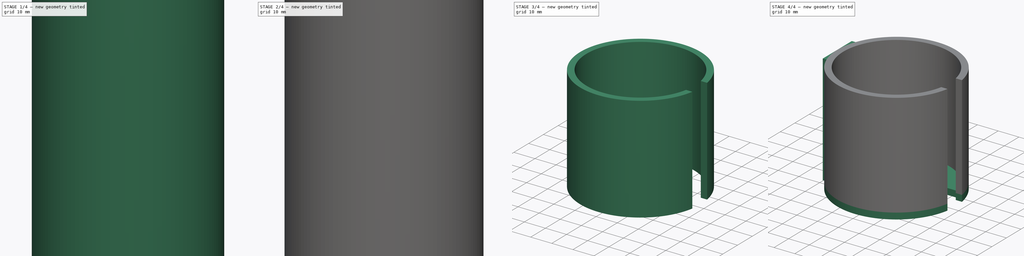
[diagram: build sequence overview — one tinted view per stage of 4, left to right]
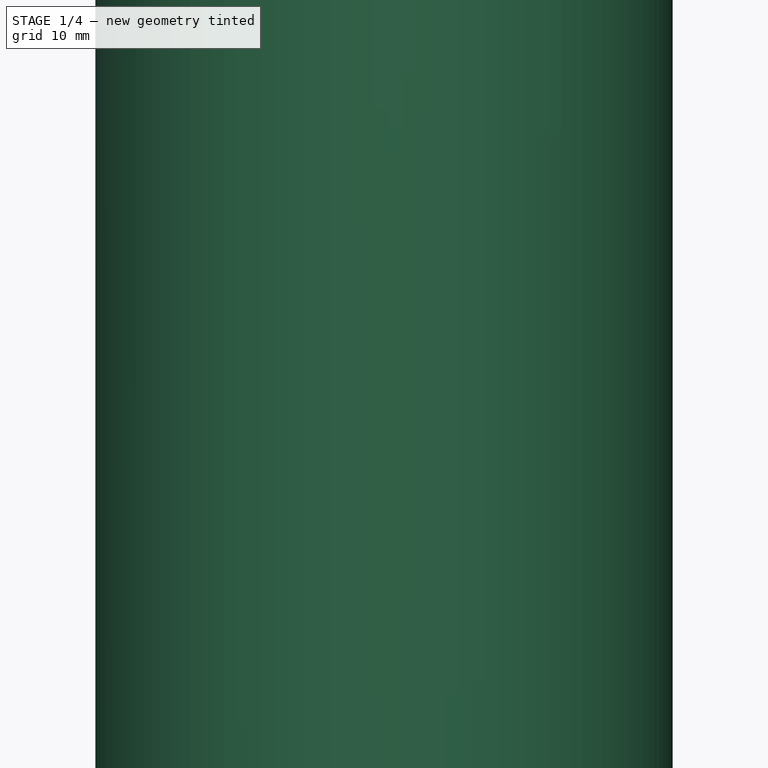
[diagram: stage 1 of 4 — iso view after this stage's code; geometry added in this stage tinted green]
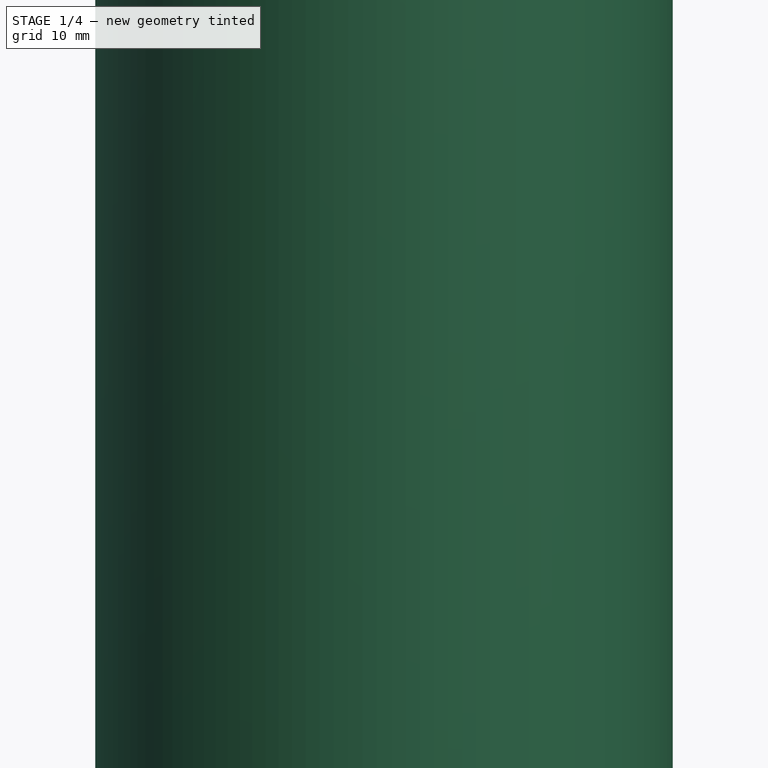
[diagram: stage 1 of 4 — front view after this stage's code; geometry added in this stage tinted green]
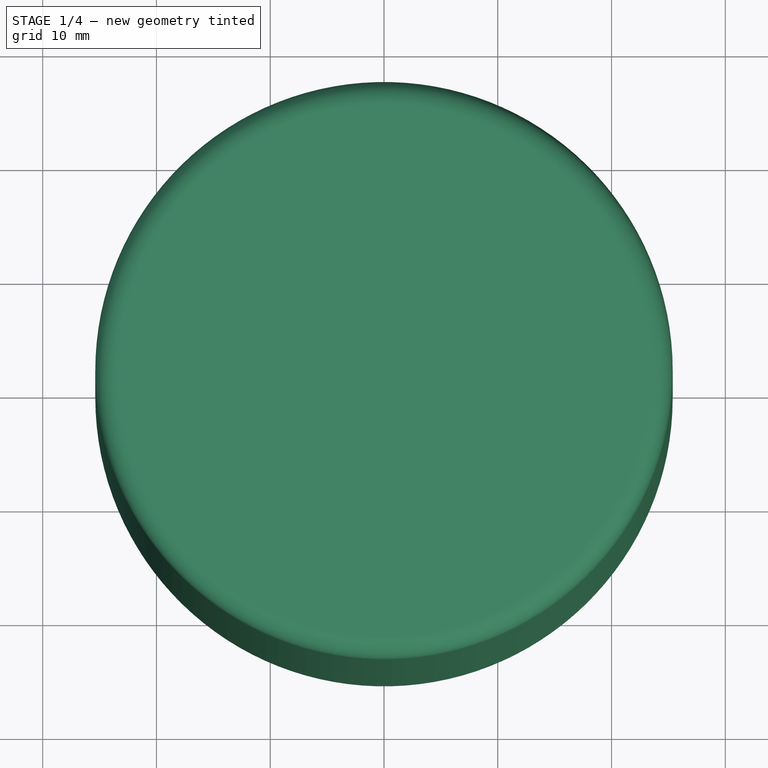
[diagram: stage 1 of 4 — top view after this stage's code; geometry added in this stage tinted green]
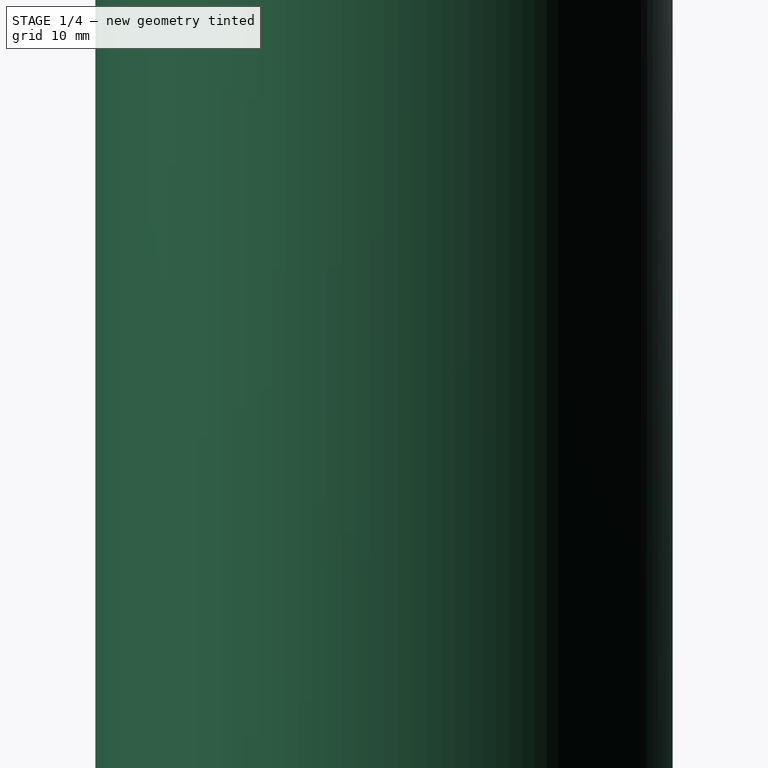
[diagram: stage 1 of 4 — right view after this stage's code; geometry added in this stage tinted green]
FCSTD DOCUMENT  (FreeCAD 2021.922R24301 +4188 (Git))
Label: HampsterWaterBottleHolder
License: Creative Commons Attribution
LicenseURL: http://creativecommons.org/licenses/by/4.0/
objects: Sketcher::SketchObject×10, PartDesign::Pad×8, PartDesign::Body×2, PartDesign::Fillet×1, PartDesign::Loft×1, PartDesign::Plane×1, PartDesign::SubShapeBinder×1
note: 44 computed .brp shape members not serialized (recipe doc carries the construction recipe); baked Part::Feature solids carry a one-line shape summary decoded from their .brp

FEATURE [Sketcher::SketchObject] Sketch
  FullyConstrained = true
  MapMode = 5
  Support = -> [XY_Plane]
  sketch-geometry (1):
    g0: Circle CenterX=0 CenterY=0 CenterZ=0 NormalX=0 NormalY=0 NormalZ=1 AngleXU=0 Radius=25.375
  constraints (2):
    c: Coincident(g0,g-1)
    c: Radius(g0) = 25.375
FEATURE [PartDesign::Pad] Pad
  AddSubType = 0
  CheckUpToFaceLimits = true
  ClaimChildren = false
  Direction = (1,1,1)
  Fit = 0
  FitJoin = 0
  InnerFit = 0
  InnerFitJoin = 0
  InnerTaperAngle = 0
  InnerTaperAngleRev = 0
  Length = 138
  Length2 = 100
  Linearize = true
  NewSolid = false
  Profile = -> Sketch
  Suppress = false
  Type = 0
  _ProfileBasedVersion = 1
FEATURE [PartDesign::Fillet] Fillet
  AddSubType = 0
  Base = -> Pad [Edge3]
  BaseFeature = -> Pad
  NewSolid = false
  Radius = 2
  SupportTransform = false
  Suppress = false
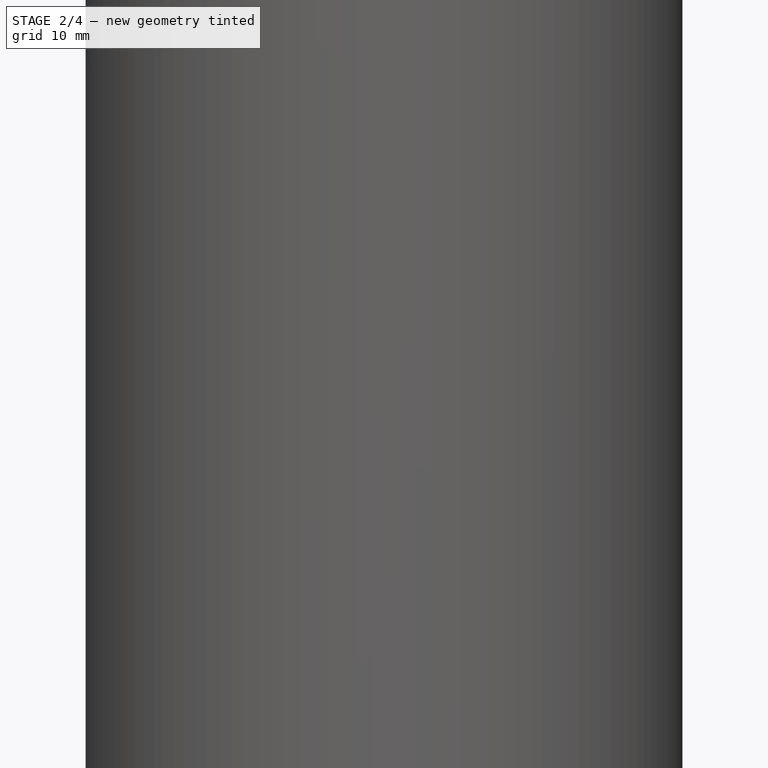
[diagram: stage 2 of 4 — iso view after this stage's code; geometry added in this stage tinted green]
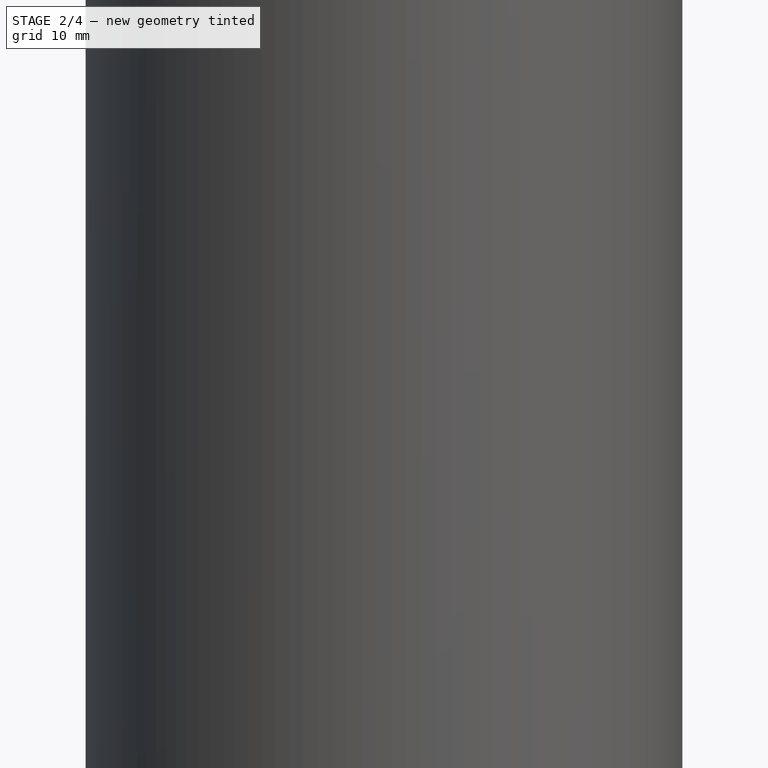
[diagram: stage 2 of 4 — front view after this stage's code; geometry added in this stage tinted green]
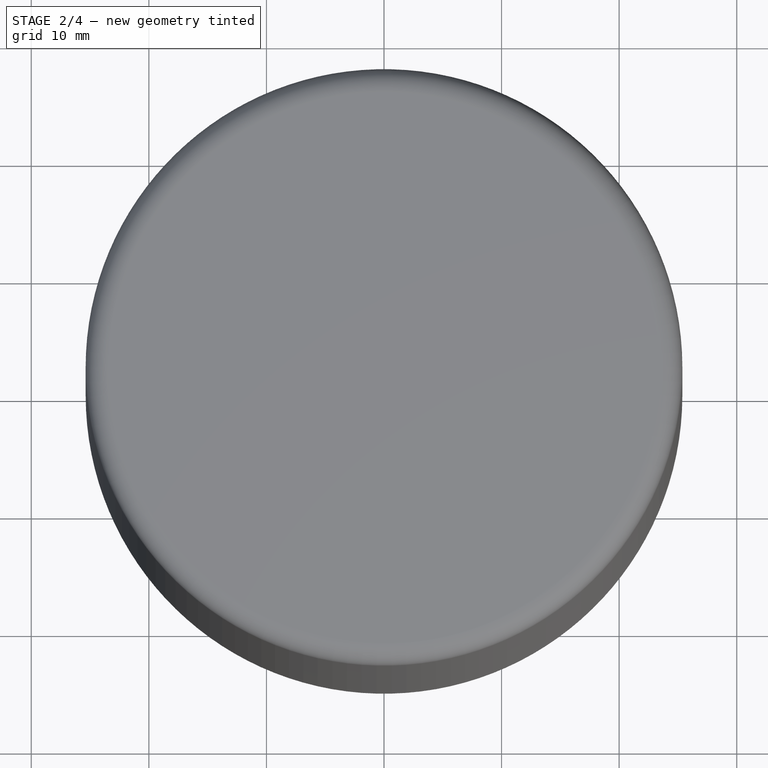
[diagram: stage 2 of 4 — top view after this stage's code; geometry added in this stage tinted green]
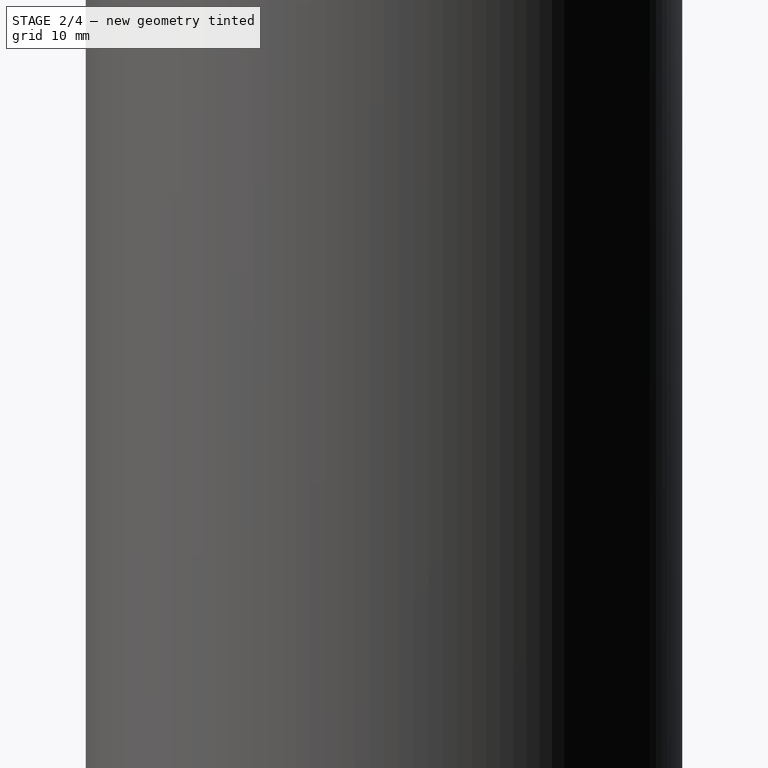
[diagram: stage 2 of 4 — right view after this stage's code; geometry added in this stage tinted green]
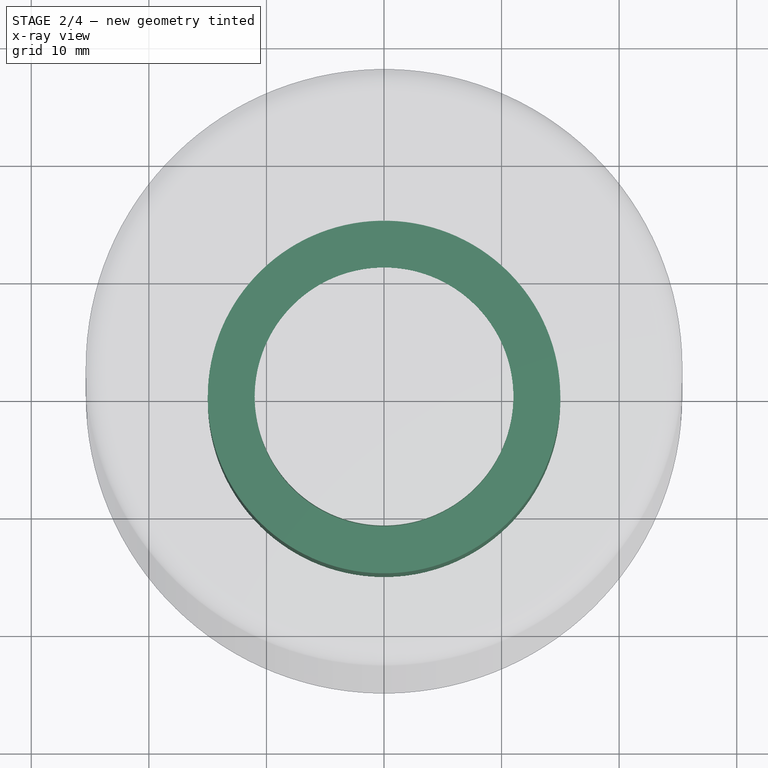
[diagram: stage 2 of 4 — x-ray composite at the top view; earlier geometry ghosted, this stage's added geometry solid]
FEATURE [Sketcher::SketchObject] Sketch001
  AttachmentOffset = pos=(0,0,4) rot=(0,0,1;0rad)
  FullyConstrained = true
  MapMode = 5
  Placement = pos=(0,0,-4) rot=(1,0,0;3.14159rad)
  Support = -> [Fillet]
  sketch-geometry (1):
    g0: Circle CenterX=0 CenterY=0 CenterZ=0 NormalX=0 NormalY=0 NormalZ=1 AngleXU=0 Radius=11
  constraints (2):
    c: Coincident(g0,g-1)
    c: Radius(g0) = 11
FEATURE [Sketcher::SketchObject] Sketch002
  ExternalGeometry = -> [Fillet]
  FullyConstrained = true
  MapMode = 5
  Placement = pos=(0,0,0) rot=(1,0,0;3.14159rad)
  Support = -> [Fillet]
  sketch-geometry (1):
    g0: Circle CenterX=0 CenterY=0 CenterZ=0 NormalX=0 NormalY=0 NormalZ=1 AngleXU=0 Radius=25.375
  constraints (2):
    c: Coincident(g0,g-1)
    c: Equal(g0,g-3)
FEATURE [PartDesign::Loft] Loft
  AddSubType = 0
  BaseFeature = -> Fillet
  ClaimChildren = false
  Closed = false
  Fit = 0
  FitJoin = 0
  InnerFit = 0
  InnerFitJoin = 0
  NewSolid = false
  Profile = -> Sketch002
  Ruled = false
  Sections = -> [Sketch001]
  SplitProfile = false
  Suppress = false
  _ProfileBasedVersion = 1
FEATURE [Sketcher::SketchObject] Sketch003
  ExternalGeometry = -> [Loft]
  FullyConstrained = true
  MapMode = 5
  Placement = pos=(0,0,-4) rot=(1,0,0;3.14159rad)
  Support = -> [Loft]
  sketch-geometry (1):
    g0: Circle CenterX=0 CenterY=0 CenterZ=0 NormalX=0 NormalY=0 NormalZ=1 AngleXU=0 Radius=11
  constraints (2):
    c: Coincident(g0,g-3)
    c: Equal(g0,g-3)
FEATURE [PartDesign::Pad] Pad001
  AddSubType = 0
  BaseFeature = -> Loft
  CheckUpToFaceLimits = true
  ClaimChildren = false
  Direction = (1,1,1)
  Fit = 0
  FitJoin = 0
  InnerFit = 0
  InnerFitJoin = 0
  InnerTaperAngle = 0
  InnerTaperAngleRev = 0
  Length = 3.8
  Length2 = 100
  Linearize = true
  NewSolid = false
  Profile = -> Sketch003
  Suppress = false
  Type = 0
  _ProfileBasedVersion = 1
FEATURE [Sketcher::SketchObject] Sketch004
  FullyConstrained = true
  MapMode = 5
  Placement = pos=(0,0,-7.8) rot=(1,0,0;3.14159rad)
  Support = -> [Pad001]
  sketch-geometry (1):
    g0: Circle CenterX=0 CenterY=0 CenterZ=0 NormalX=0 NormalY=0 NormalZ=1 AngleXU=0 Radius=15
  constraints (2):
    c: Coincident(g0,g-1)
    c: Radius(g0) = 15
FEATURE [PartDesign::Pad] Pad002
  AddSubType = 0
  BaseFeature = -> Pad001
  CheckUpToFaceLimits = true
  ClaimChildren = false
  Direction = (1,1,1)
  Fit = 0
  FitJoin = 0
  InnerFit = 0
  InnerFitJoin = 0
  InnerTaperAngle = 0
  InnerTaperAngleRev = 0
  Length = 19
  Length2 = 100
  Linearize = true
  NewSolid = false
  Profile = -> Sketch004
  Suppress = false
  Type = 0
  _ProfileBasedVersion = 1
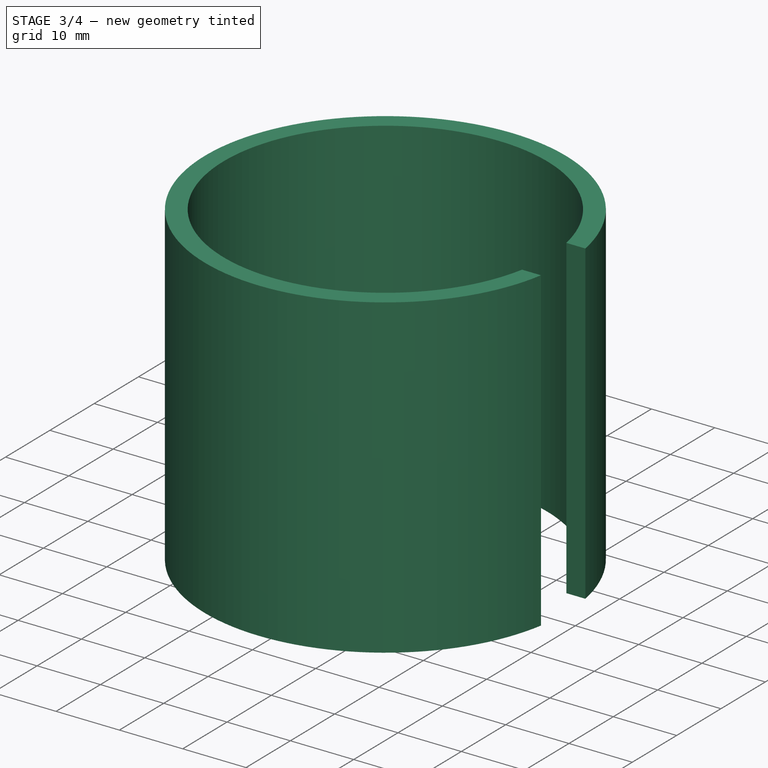
[diagram: stage 3 of 4 — iso view after this stage's code; geometry added in this stage tinted green]
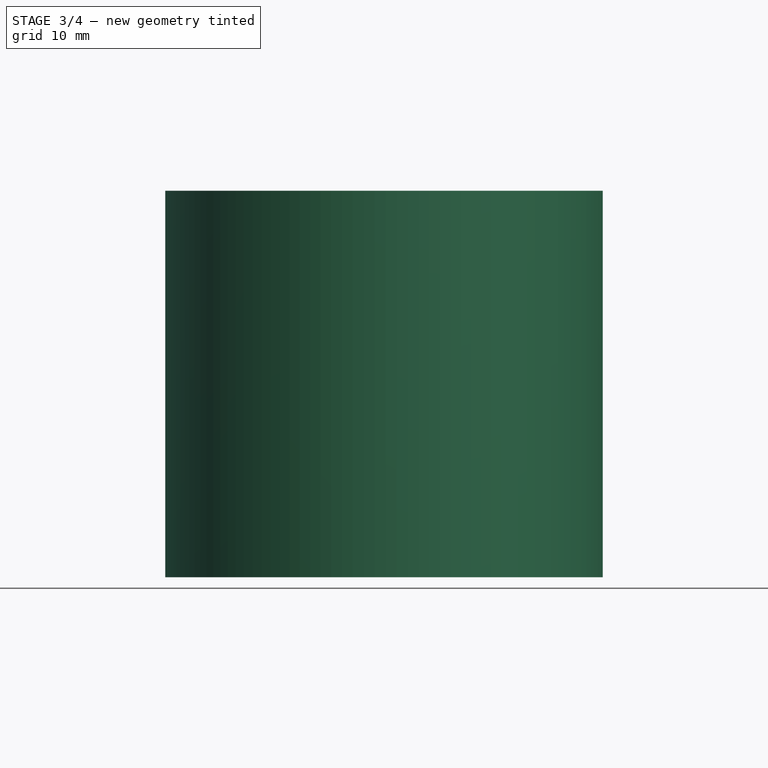
[diagram: stage 3 of 4 — front view after this stage's code; geometry added in this stage tinted green]
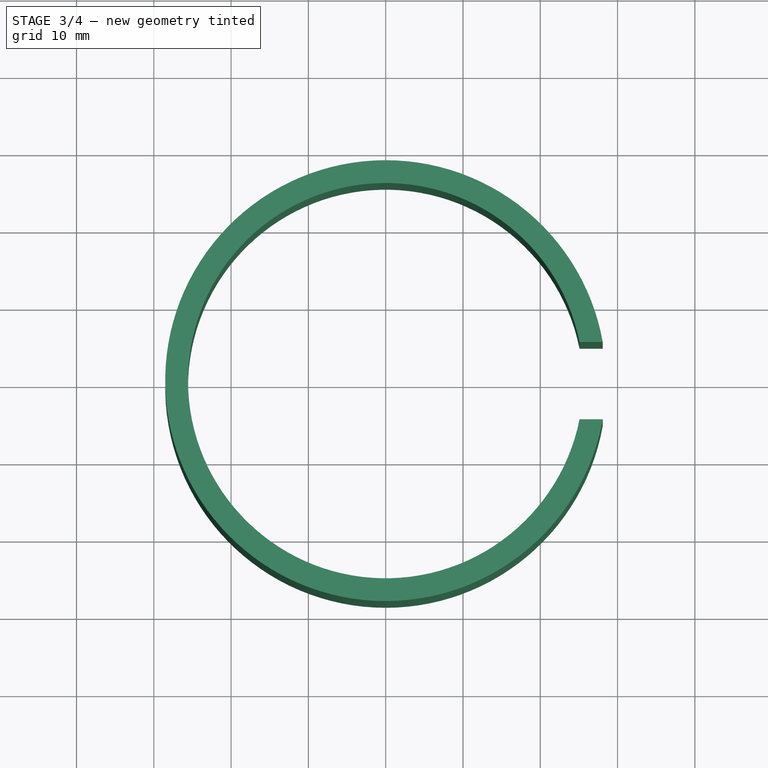
[diagram: stage 3 of 4 — top view after this stage's code; geometry added in this stage tinted green]
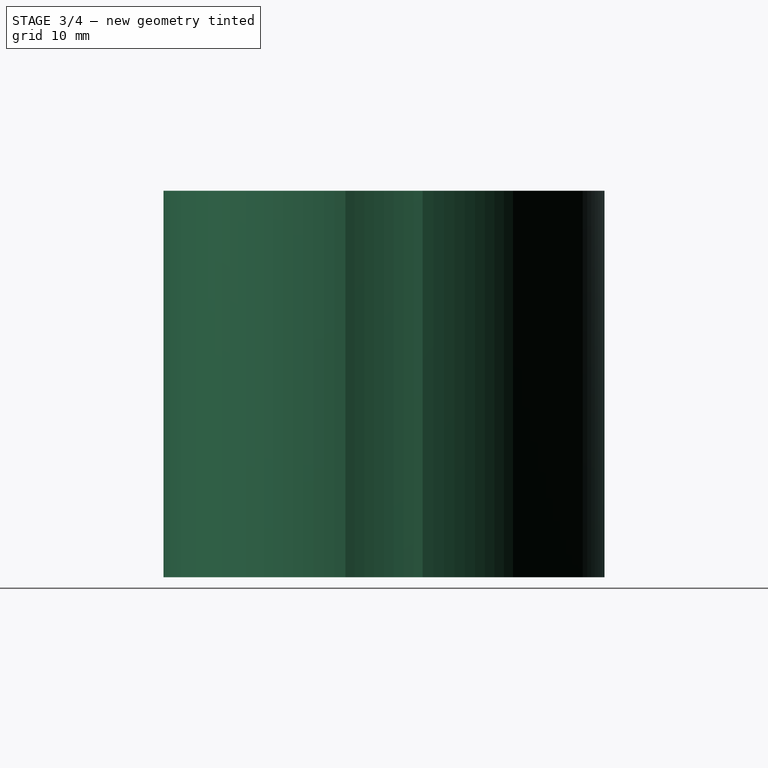
[diagram: stage 3 of 4 — right view after this stage's code; geometry added in this stage tinted green]
FEATURE [PartDesign::Plane] DatumPlane
  AttachmentOffset = pos=(21,0,12) rot=(0,1,0;1.0472rad)
  Length = 183.495
  MapMode = 5
  MinimumLength = 10
  MinimumWidth = 10
  Placement = pos=(21,0,-38.8) rot=(0.866025,0,0.5;3.14159rad)
  ResizeMode = 0
  Support = -> [Pad002]
  Width = 50.7043
FEATURE [Sketcher::SketchObject] Sketch005
  FullyConstrained = true
  MapMode = 5
  Placement = pos=(21,0,-38.8) rot=(0.866025,0,0.5;3.14159rad)
  Support = -> [DatumPlane]
  sketch-geometry (1):
    g0: Circle CenterX=0 CenterY=0 CenterZ=0 NormalX=0 NormalY=0 NormalZ=1 AngleXU=0 Radius=6.675
  constraints (2):
    c: Coincident(g0,g-1)
    c: Radius(g0) = 6.675
FEATURE [PartDesign::Pad] Pad003
  AddSubType = 0
  BaseFeature = -> Pad002
  CheckUpToFaceLimits = true
  ClaimChildren = false
  Direction = (1,1,1)
  Fit = 0
  FitJoin = 0
  InnerFit = 0
  InnerFitJoin = 0
  InnerTaperAngle = 0
  InnerTaperAngleRev = 0
  Length = 10
  Length2 = 100
  Linearize = true
  NewSolid = false
  Profile = -> Sketch005
  Reversed = true
  Suppress = false
  Type = 3
  UpToFace = -> Pad002 [Face3]
  _ProfileBasedVersion = 1
FEATURE [Sketcher::SketchObject] Sketch006
  ExternalGeometry = -> [Pad003]
  FullyConstrained = true
  MapMode = 5
  Placement = pos=(32.5509,9.7e-15,-18.7933) rot=(0.654654,0.654654,0.377964;2.41886rad)
  Support = -> [Pad003]
  sketch-geometry (1):
    g0: Circle CenterX=0 CenterY=-23.1018 CenterZ=0 NormalX=0 NormalY=0 NormalZ=1 AngleXU=0 Radius=4
  constraints (2):
    c: Coincident(g0,g-3)
    c: Radius(g0) = 4
FEATURE [PartDesign::Pad] Pad004
  AddSubType = 0
  BaseFeature = -> Pad003
  CheckUpToFaceLimits = true
  ClaimChildren = false
  Direction = (1,1,1)
  Fit = 0
  FitJoin = 0
  InnerFit = 0
  InnerFitJoin = 0
  InnerTaperAngle = 0
  InnerTaperAngleRev = 0
  Length = 45
  Length2 = 100
  Linearize = true
  NewSolid = false
  Profile = -> Sketch006
  Suppress = false
  Type = 0
  _ProfileBasedVersion = 1
FEATURE [PartDesign::Body] Body  label="WaterBottle"
  AutoGroupSolids = false
  ExportMode = 0
  Group = -> [Sketch,Pad,Fillet,Sketch001,Sketch002,Loft,Sketch003,Pad001,Sketch004,Pad002,DatumPlane,Sketch005,Pad003,Sketch006,Pad004]
  Origin = -> Origin
  Tip = -> Pad004
  _ExportChildren = -> [Pad,Fillet,Loft,Pad001,Pad002,DatumPlane,Pad003,Pad004]
  _GroupVersion = 1
FEATURE [PartDesign::SubShapeBinder] Binder  label="Binder(WaterBottle)"
  BindCopyOnChange = 0
  BindMode = 0
  ClaimChildren = false
  Context = -> Body001 [Binder.]
  FillStyle = 0
  Fuse = false
  MakeFace = true
  PartialLoad = false
  Relative = true
  Support = -> [Body]
  _Version = 8
FEATURE [Sketcher::SketchObject] Sketch007
  ExternalGeometry = -> [Binder]
  FullyConstrained = true
  MapMode = 5
  Support = -> [XY_Plane001]
  sketch-geometry (9):
    g0: ArcOfCircle CenterX=0 CenterY=0 CenterZ=0 NormalX=0 NormalY=0 NormalZ=1 AngleXU=0 Radius=25.575 StartAngle=0.196771 EndAngle=6.08641
    g1: ArcOfCircle CenterX=0 CenterY=0 CenterZ=0 NormalX=0 NormalY=0 NormalZ=1 AngleXU=0 Radius=28.5231 StartAngle=0.176207 EndAngle=6.10698
    g2: LineSegment [constr] StartX=25.0815 StartY=5 StartZ=0 EndX=0 EndY=0 EndZ=0
    g3: LineSegment [constr] StartX=0 StartY=0 StartZ=0 EndX=25.0815 EndY=-5 EndZ=0
    g4: LineSegment StartX=25.0815 StartY=-5 StartZ=0 EndX=28.0815 EndY=-5 EndZ=0
    g5: LineSegment StartX=25.0815 StartY=5 StartZ=0 EndX=28.0815 EndY=5 EndZ=0
    g6: LineSegment [constr] StartX=28.0815 StartY=5 StartZ=0 EndX=28.0815 EndY=0 EndZ=0
    g7: LineSegment [constr] StartX=28.0815 StartY=0 StartZ=0 EndX=28.0815 EndY=-5 EndZ=0
    g8: LineSegment [constr] StartX=-25.375 StartY=0 StartZ=0 EndX=-25.575 EndY=0 EndZ=0
  constraints (25):
    c: Coincident(g0,g-3)
    c: Coincident(g1,g0)
    c: Coincident(g2,g0)
    c: Coincident(g2,g0)
    c: Coincident(g3,g0)
    c: Coincident(g3,g0)
    c: Coincident(g4,g0)
    c: Coincident(g4,g1)
    c: Coincident(g5,g0)
    c: Coincident(g5,g1)
    c: Horizontal(g4)
    c: Horizontal(g5)
    c: Coincident(g6,g1)
    c: PointOnObject(g6,g-1)
    c: Vertical(g6)
    c: Coincident(g7,g6)
    c: Coincident(g7,g1)
    c: Vertical(g7)
    c: Distance(g7) = 5
    c: Distance(g4) = 3
    c: PointOnObject(g8,g-3)
    c: PointOnObject(g8,g0)
    c: Horizontal(g8)
    c: PointOnObject(g8,g-1)
    c: Distance(g8) = 0.2
FEATURE [PartDesign::Pad] Pad005
  AddSubType = 0
  CheckUpToFaceLimits = true
  ClaimChildren = false
  Direction = (1,1,1)
  Fit = 0
  FitJoin = 0
  InnerFit = 0
  InnerFitJoin = 0
  InnerTaperAngle = 0
  InnerTaperAngleRev = 0
  Length = 50
  Length2 = 100
  Linearize = true
  NewSolid = false
  Profile = -> Sketch007
  Suppress = false
  Type = 0
  _ProfileBasedVersion = 1
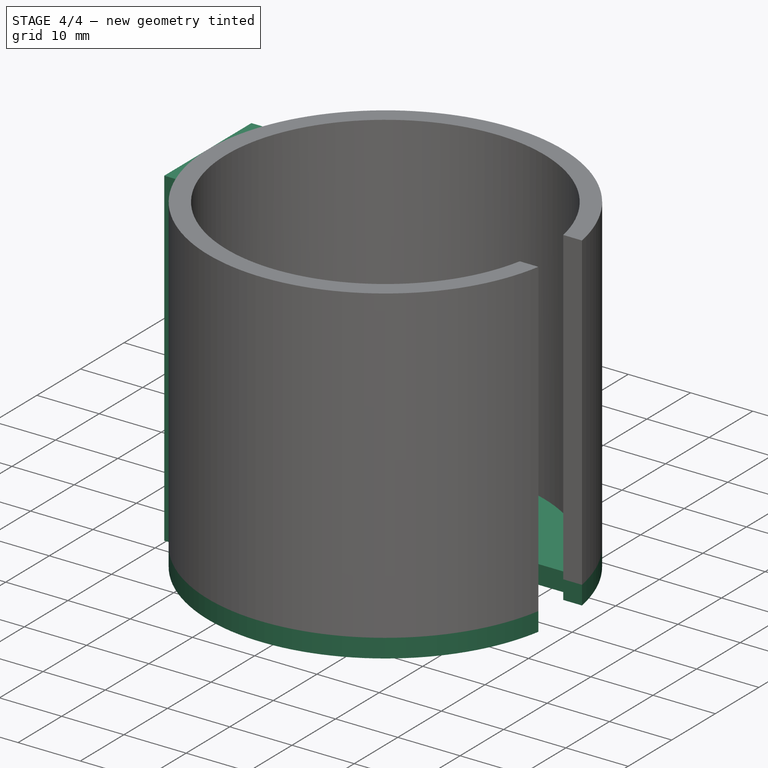
[diagram: stage 4 of 4 — iso view after this stage's code; geometry added in this stage tinted green]
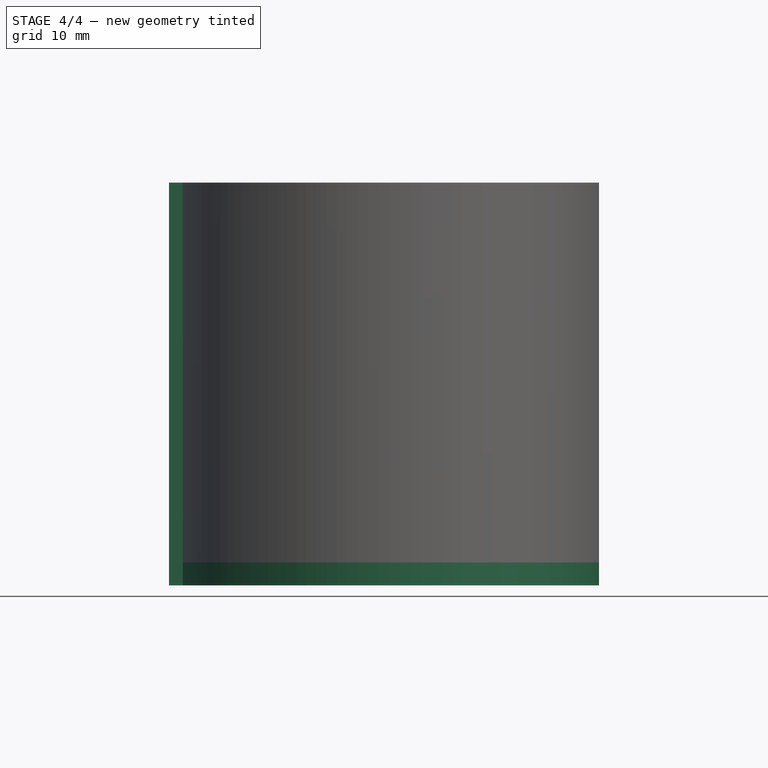
[diagram: stage 4 of 4 — front view after this stage's code; geometry added in this stage tinted green]
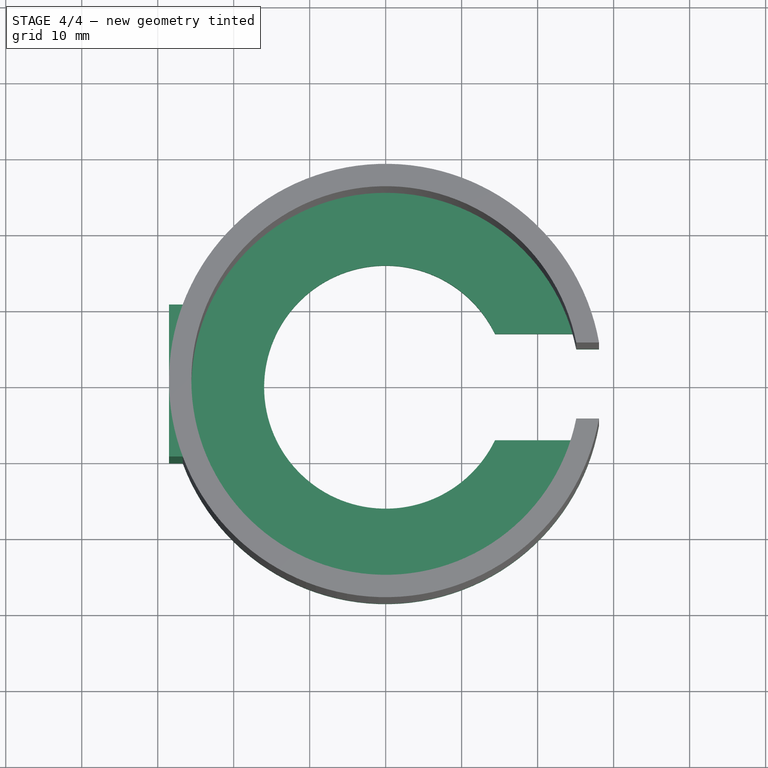
[diagram: stage 4 of 4 — top view after this stage's code; geometry added in this stage tinted green]
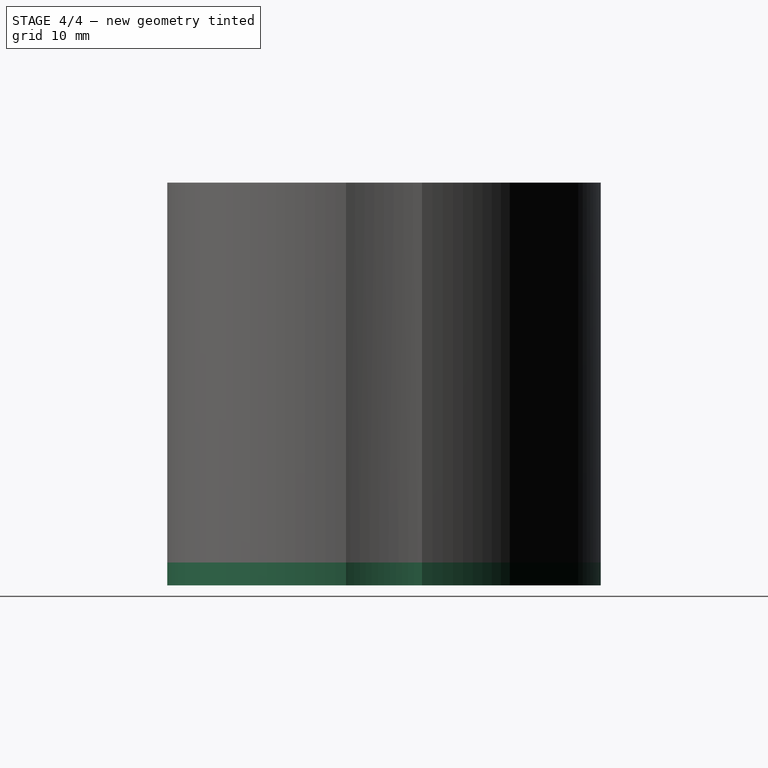
[diagram: stage 4 of 4 — right view after this stage's code; geometry added in this stage tinted green]
FEATURE [Sketcher::SketchObject] Sketch008
  ExternalGeometry = -> [Binder,Pad005]
  FullyConstrained = true
  MapMode = 5
  Placement = pos=(0,0,0) rot=(1,0,0;3.14159rad)
  Support = -> [Pad005]
  sketch-geometry (11):
    g0: ArcOfCircle CenterX=0 CenterY=-3e-16 CenterZ=0 NormalX=0 NormalY=0 NormalZ=1 AngleXU=0 Radius=16 StartAngle=0.452817 EndAngle=5.83037
    g1: LineSegment StartX=14.3875 StartY=7 StartZ=0 EndX=24.5984 EndY=7 EndZ=0
    g2: LineSegment StartX=14.3875 StartY=-7 StartZ=0 EndX=24.5984 EndY=-7 EndZ=0
    g3: LineSegment [constr] StartX=-15 StartY=0 StartZ=0 EndX=-16 EndY=0 EndZ=0
    g4: LineSegment StartX=28.0815 StartY=-5 StartZ=0 EndX=25.0815 EndY=-5 EndZ=0
    g5: ArcOfCircle CenterX=0 CenterY=-3e-16 CenterZ=0 NormalX=0 NormalY=0 NormalZ=1 AngleXU=0 Radius=25.575 StartAngle=6.00594 EndAngle=6.08641
    g6: ArcOfCircle CenterX=0 CenterY=-3e-16 CenterZ=0 NormalX=0 NormalY=0 NormalZ=1 AngleXU=0 Radius=25.575 StartAngle=0.196771 EndAngle=0.277243
    g7: LineSegment StartX=25.0815 StartY=5 StartZ=0 EndX=28.0815 EndY=5 EndZ=0
    g8: ArcOfCircle CenterX=0 CenterY=-3e-16 CenterZ=0 NormalX=0 NormalY=0 NormalZ=1 AngleXU=0 Radius=28.5231 StartAngle=0.176207 EndAngle=6.10698
    g9: LineSegment [constr] StartX=14.3875 StartY=7 StartZ=0 EndX=14.3875 EndY=0 EndZ=0
    g10: LineSegment [constr] StartX=14.3875 StartY=0 StartZ=0 EndX=14.3875 EndY=-7 EndZ=0
  constraints (31):
    c: Coincident(g0,g-3)
    c: Coincident(g1,g0)
    c: Horizontal(g1)
    c: Coincident(g2,g0)
    c: Horizontal(g2)
    c: PointOnObject(g3,g-3)
    c: PointOnObject(g3,g0)
    c: Horizontal(g3)
    c: PointOnObject(g3,g-1)
    c: Distance(g3) = 1
    c: Coincident(g4,g-4)
    c: Coincident(g5,g0)
    c: Coincident(g5,g4)
    c: Coincident(g6,g0)
    c: Coincident(g6,g-4)
    c: Coincident(g2,g5)
    c: Coincident(g1,g6)
    c: Coincident(g7,g6)
    c: Coincident(g4,g-5)
    c: Coincident(g7,g-5)
    c: Coincident(g8,g0)
    c: Coincident(g8,g7)
    c: Coincident(g8,g4)
    c: Coincident(g9,g0)
    c: PointOnObject(g9,g-1)
    c: Vertical(g9)
    c: Coincident(g10,g9)
    c: Coincident(g10,g0)
    c: Vertical(g10)
    c: Equal(g9,g10)
    c: Distance(g10) = 7
FEATURE [PartDesign::Pad] Pad006
  AddSubType = 0
  BaseFeature = -> Pad005
  CheckUpToFaceLimits = true
  ClaimChildren = false
  Direction = (1,1,1)
  Fit = 0
  FitJoin = 0
  InnerFit = 0
  InnerFitJoin = 0
  InnerTaperAngle = 0
  InnerTaperAngleRev = 0
  Length = 3
  Length2 = 100
  Linearize = true
  NewSolid = false
  Profile = -> Sketch008
  Suppress = false
  Type = 0
  _ProfileBasedVersion = 1
FEATURE [Sketcher::SketchObject] Sketch009
  ExternalGeometry = -> [Pad006]
  FullyConstrained = true
  MapMode = 5
  Placement = pos=(0,0,-3) rot=(1,0,0;3.14159rad)
  Support = -> [Pad006]
  sketch-geometry (6):
    g0: LineSegment StartX=-28.5231 StartY=10 StartZ=0 EndX=-28.5231 EndY=-10 EndZ=0
    g1: GeomPoint [constr] X=-28.5231 Y=3.2e-15 Z=0
    g2: ArcOfCircle CenterX=0 CenterY=-3e-16 CenterZ=0 NormalX=0 NormalY=0 NormalZ=1 AngleXU=0 Radius=28.5231 StartAngle=2.78339 EndAngle=3.14159
    g3: ArcOfCircle CenterX=0 CenterY=-3e-16 CenterZ=0 NormalX=0 NormalY=0 NormalZ=1 AngleXU=0 Radius=28.5231 StartAngle=3.14159 EndAngle=3.4998
    g4: LineSegment StartX=-26.7127 StartY=10 StartZ=0 EndX=-28.5231 EndY=10 EndZ=0
    g5: LineSegment StartX=-28.5231 StartY=-10 StartZ=0 EndX=-26.7127 EndY=-10 EndZ=0
  constraints (16):
    c: Vertical(g0)
    c: Distance(g0) = 20
    c: PointOnObject(g1,g0)
    c: PointOnObject(g1,g-3)
    c: DistanceY(g0,g1) = 10
    c: PointOnObject(g1,g-1)
    c: Coincident(g2,g-3)
    c: Coincident(g2,g1)
    c: Coincident(g3,g2)
    c: Coincident(g3,g2)
    c: Coincident(g4,g2)
    c: Coincident(g4,g0)
    c: Coincident(g5,g0)
    c: Coincident(g5,g3)
    c: Horizontal(g5)
    c: Horizontal(g4)
FEATURE [PartDesign::Pad] Pad007
  AddSubType = 0
  BaseFeature = -> Pad006
  CheckUpToFaceLimits = true
  ClaimChildren = false
  Direction = (1,1,1)
  Fit = 0
  FitJoin = 0
  InnerFit = 0
  InnerFitJoin = 0
  InnerTaperAngle = 0
  InnerTaperAngleRev = 0
  Length = 10
  Length2 = 100
  Linearize = true
  NewSolid = false
  Profile = -> Sketch009
  Reversed = true
  Suppress = false
  Type = 3
  UpToFace = -> Pad006 [Face7]
  _ProfileBasedVersion = 1
FEATURE [PartDesign::Body] Body001  label="Holder"
  AutoGroupSolids = false
  ExportMode = 0
  Group = -> [Sketch007,Binder,Pad005,Sketch008,Pad006,Sketch009,Pad007]
  Origin = -> Origin001
  Tip = -> Pad007
  _ExportChildren = -> [Binder,Pad005,Pad006,Pad007]
  _GroupVersion = 1
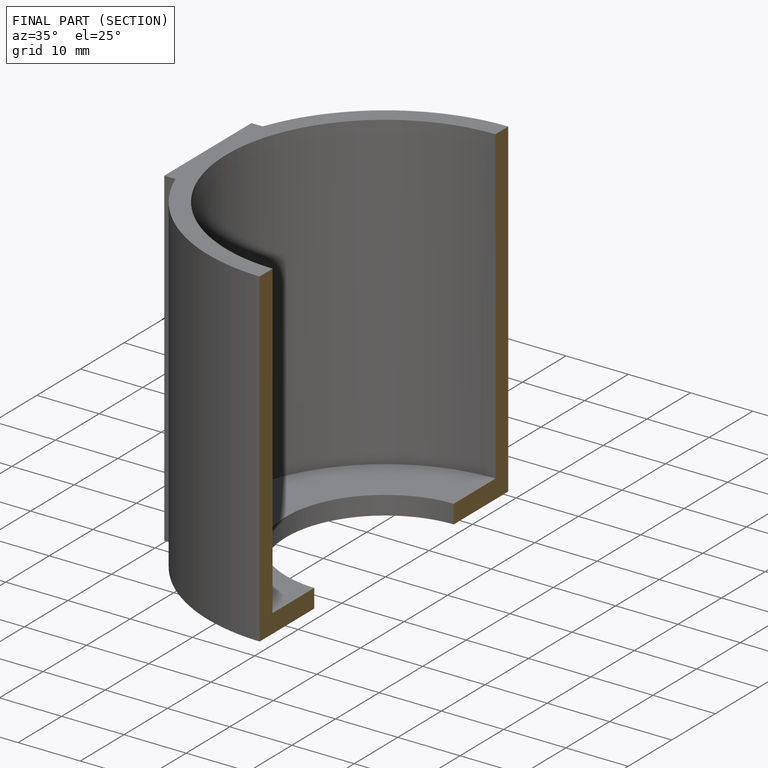
[diagram: finished part — half-section view (interior)]
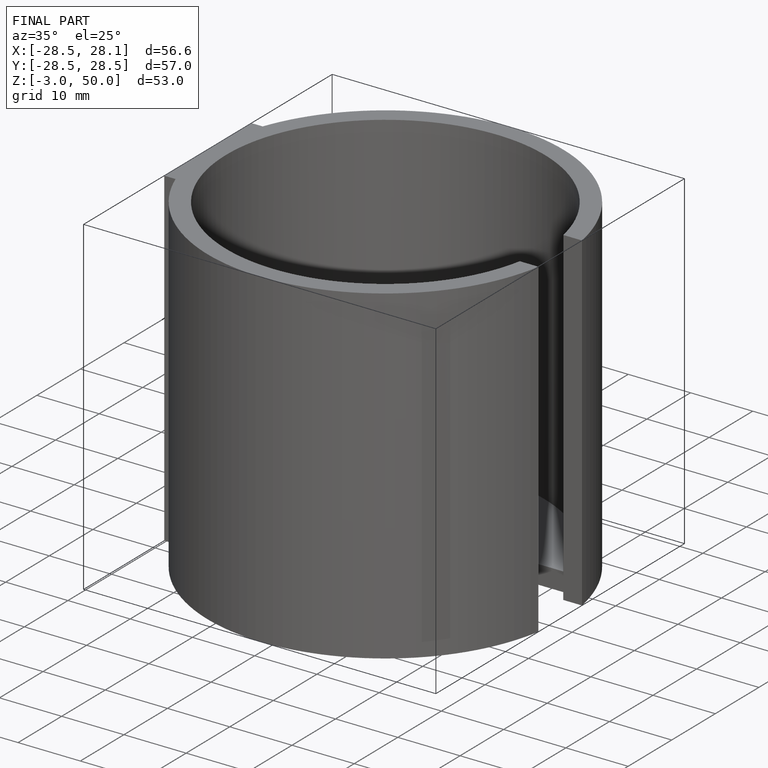
[diagram: finished part — iso view with bounding-box wireframe]
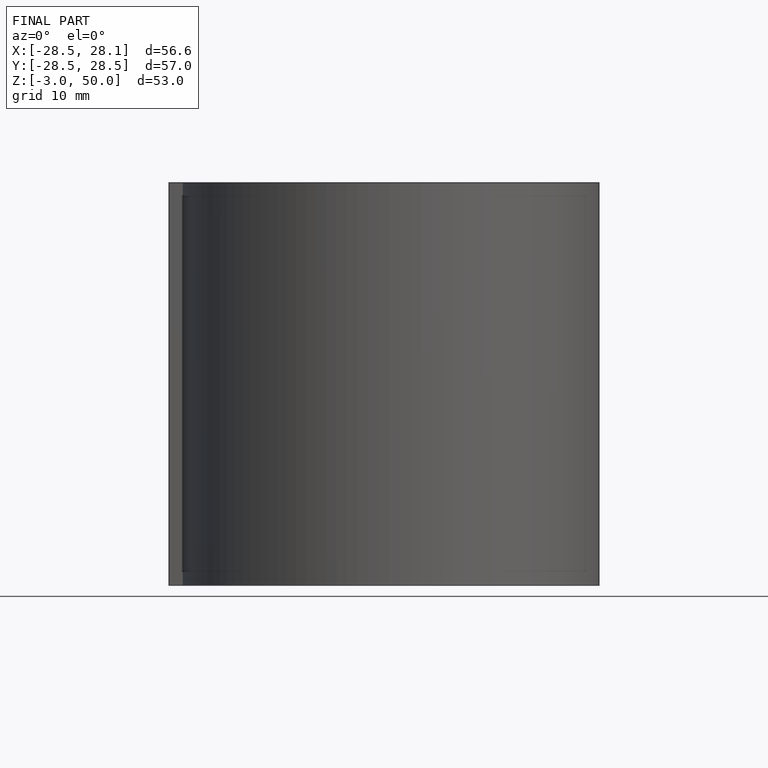
[diagram: finished part — front view with bounding-box wireframe]
